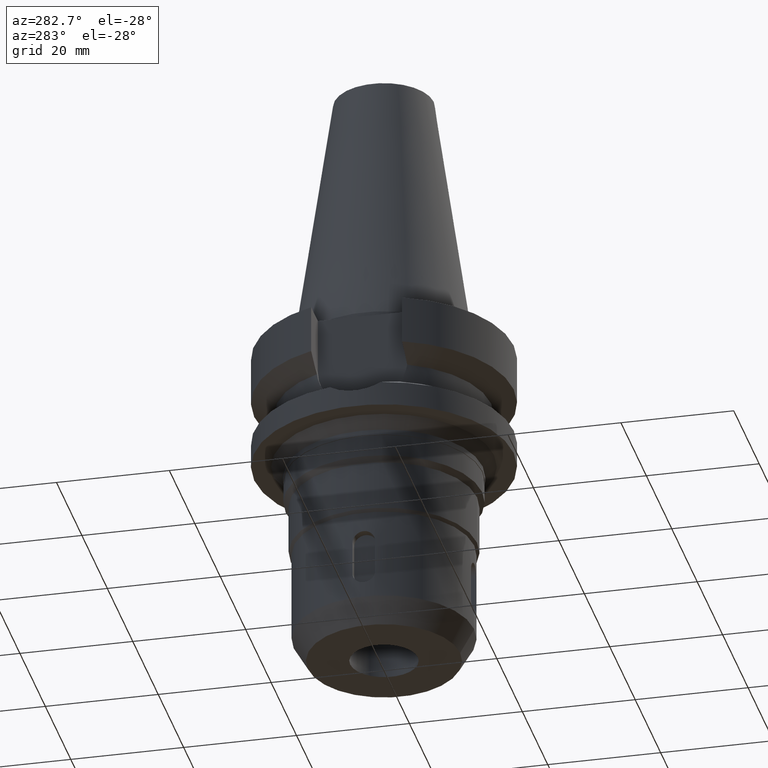
[diagram: clean part render]
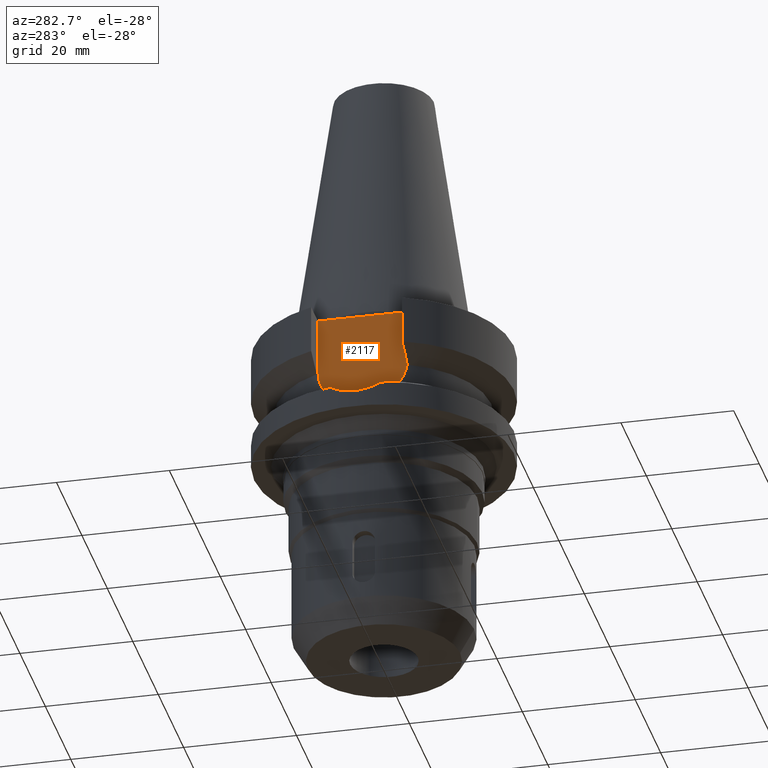
[diagram: same view with one face highlighted and labeled with its STEP entity id]
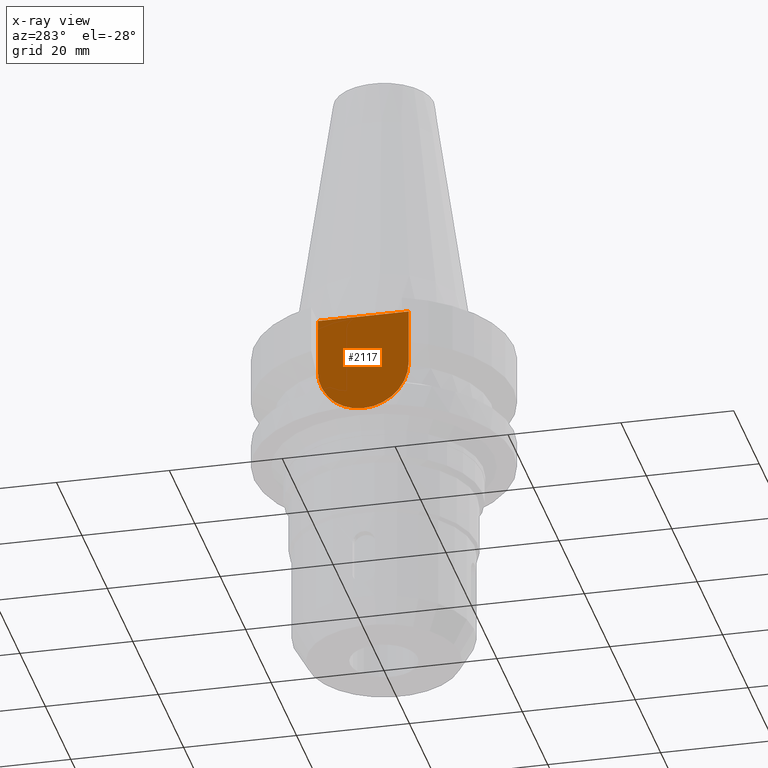
[diagram: x-ray of the same camera — body ghosted, the highlighted face saturated]
A machine part, auxiliary view. The second image highlights one B-rep face of the part: STEP entity #2117.
The next image is the same camera in x-ray: the body ghosted, the highlighted face saturated — about 0% of this face is hidden behind the body in this view.
In plain terms, the highlighted planar face has unit normal (-1, 0, 0).
Its self-contained STEP definition (entity closure, byte-faithful):
#94=DIRECTION('',(0.E0,1.E0,0.E0));
#95=VECTOR('',#94,1.61E1);
#96=CARTESIAN_POINT('',(-1.63E1,-8.05E0,-1.E0));
#97=LINE('',#96,#95);
#170=DIRECTION('',(0.E0,0.E0,-1.E0));
#171=VECTOR('',#170,9.95E0);
#172=CARTESIAN_POINT('',(-1.63E1,-8.05E0,-1.E0));
#173=LINE('',#172,#171);
#177=CARTESIAN_POINT('',(-1.63E1,1.981478521020E-14,-1.095E1));
#178=DIRECTION('',(1.E0,0.E0,0.E0));
#179=DIRECTION('',(0.E0,-1.E0,2.427319904771E-14));
#180=AXIS2_PLACEMENT_3D('',#177,#178,#179);
#185=CARTESIAN_POINT('',(-1.63E1,1.981478521020E-14,-1.095E1));
#186=DIRECTION('',(1.E0,0.E0,0.E0));
#187=DIRECTION('',(0.E0,0.E0,-1.E0));
#188=AXIS2_PLACEMENT_3D('',#185,#186,#187);
#193=DIRECTION('',(0.E0,0.E0,1.E0));
#194=VECTOR('',#193,9.95E0);
#195=CARTESIAN_POINT('',(-1.63E1,8.05E0,-1.095E1));
#196=LINE('',#195,#194);
#1915=CARTESIAN_POINT('',(-1.63E1,8.05E0,-1.095E1));
#1916=VERTEX_POINT('',#1915);
#1917=CARTESIAN_POINT('',(-1.63E1,2.030770554686E-14,-1.9E1));
#1918=VERTEX_POINT('',#1917);
#1919=CARTESIAN_POINT('',(-1.63E1,-8.05E0,-1.095E1));
#1920=VERTEX_POINT('',#1919);
#1937=CARTESIAN_POINT('',(-1.63E1,-8.05E0,-1.E0));
#1938=VERTEX_POINT('',#1937);
#1941=CARTESIAN_POINT('',(-1.63E1,8.05E0,-1.E0));
#1942=VERTEX_POINT('',#1941);
#2101=CARTESIAN_POINT('',(-1.63E1,2.249676170034E-14,0.E0));
#2102=DIRECTION('',(-1.E0,0.E0,0.E0));
#2103=DIRECTION('',(0.E0,0.E0,-1.E0));
#2104=AXIS2_PLACEMENT_3D('',#2101,#2102,#2103);
#2105=PLANE('',#2104);
#2106=ORIENTED_EDGE('',*,*,#2074,.F.);
#2108=ORIENTED_EDGE('',*,*,#2107,.T.);
#2110=ORIENTED_EDGE('',*,*,#2109,.T.);
#2112=ORIENTED_EDGE('',*,*,#2111,.T.);
#2114=ORIENTED_EDGE('',*,*,#2113,.T.);
#2115=EDGE_LOOP('',(#2106,#2108,#2110,#2112,#2114));
#2116=FACE_OUTER_BOUND('',#2115,.F.);
#181=CIRCLE('',#180,8.05E0);
#189=CIRCLE('',#188,8.05E0);
#2074=EDGE_CURVE('',#1938,#1942,#97,.T.);
#2107=EDGE_CURVE('',#1938,#1920,#173,.T.);
#2109=EDGE_CURVE('',#1920,#1918,#181,.T.);
#2111=EDGE_CURVE('',#1918,#1916,#189,.T.);
#2113=EDGE_CURVE('',#1916,#1942,#196,.T.);
#2117=ADVANCED_FACE('',(#2116),#2105,.T.);